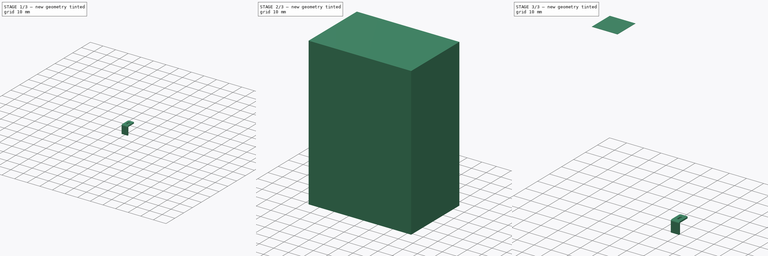
[diagram: build sequence overview — one tinted view per stage of 3, left to right]
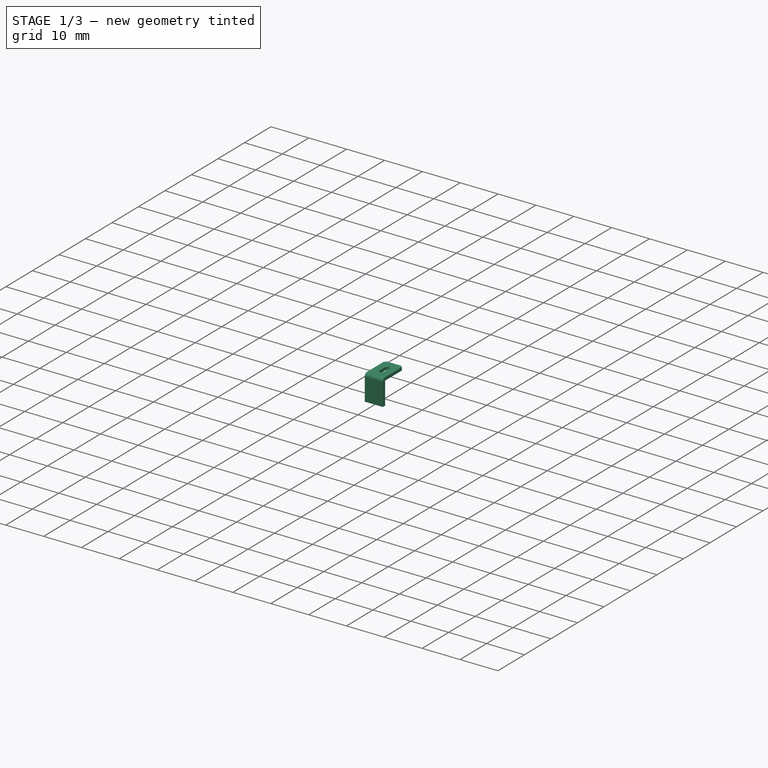
[diagram: stage 1 of 3 — iso view after this stage's code; geometry added in this stage tinted green]
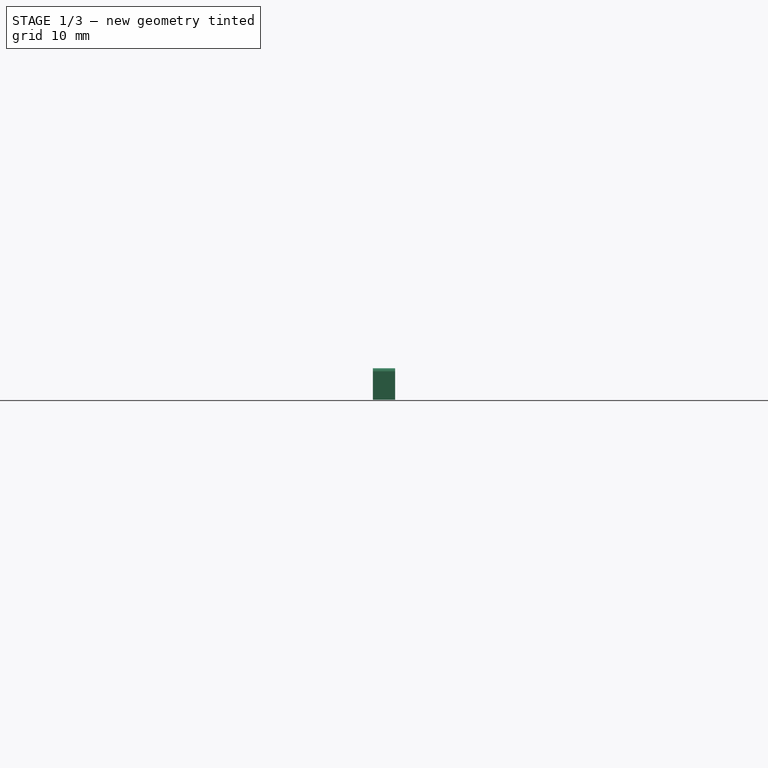
[diagram: stage 1 of 3 — front view after this stage's code; geometry added in this stage tinted green]
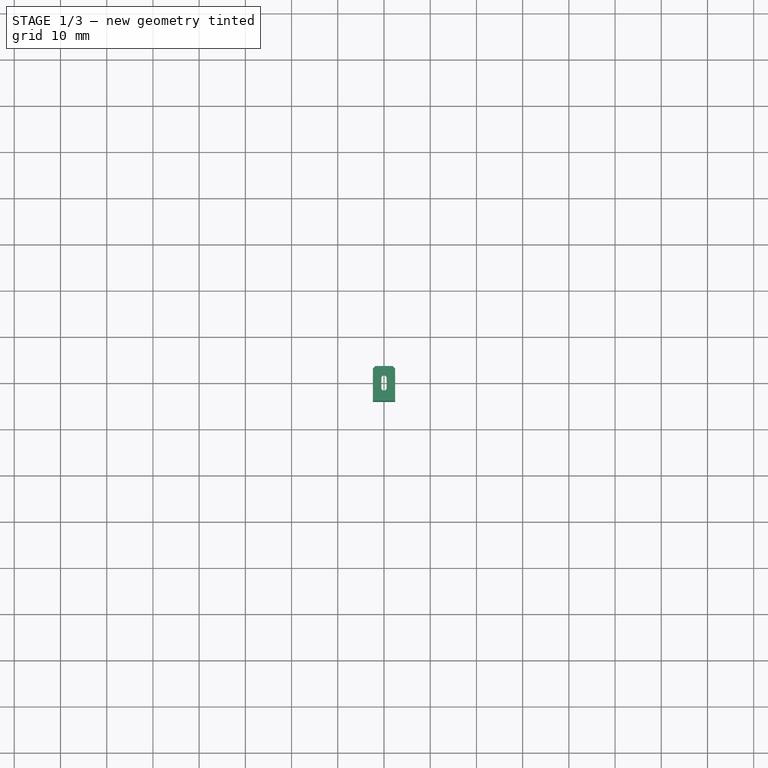
[diagram: stage 1 of 3 — top view after this stage's code; geometry added in this stage tinted green]
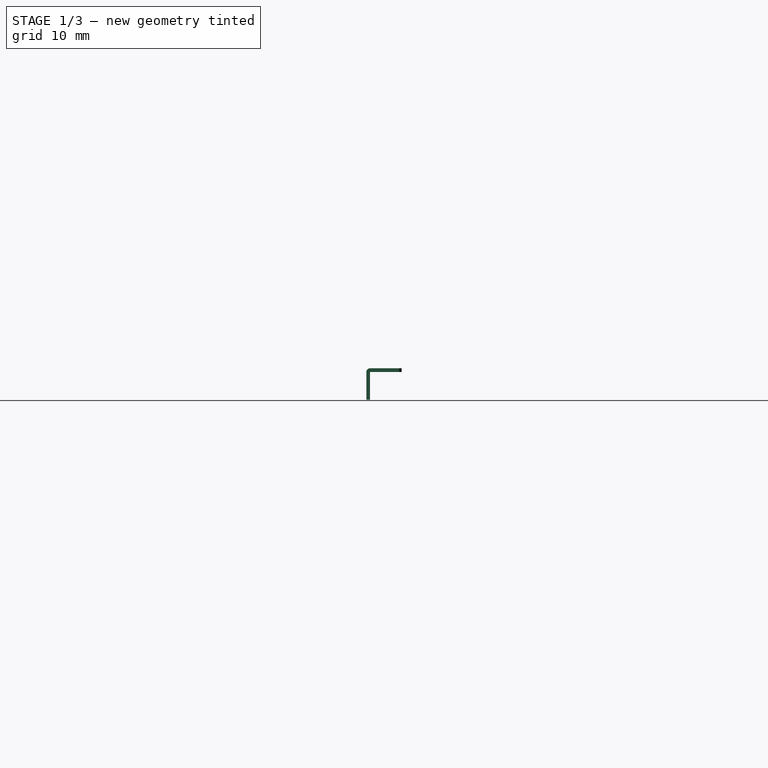
[diagram: stage 1 of 3 — right view after this stage's code; geometry added in this stage tinted green]
FCSTD DOCUMENT  (FreeCAD 0.20R29410 (Git))
Label: Battery
License: All rights reserved
LicenseURL: http://en.wikipedia.org/wiki/All_rights_reserved
objects: PartDesign::Body×6, Sketcher::SketchObject×4, PartDesign::Pad×4, App::Part×4, PartDesign::ShapeBinder×2, PartDesign::FeatureBase×2, PartDesign::Fillet×1, Part::Compound×1
note: 25 computed .brp shape members not serialized (recipe doc carries the construction recipe); baked Part::Feature solids carry a one-line shape summary decoded from their .brp

FEATURE [PartDesign::Body] Body  label="BatteryBodyEtrude"
  Group = -> [Sketch,Pad,Fillet]
  Origin = -> Origin001
  Tip = -> Fillet
FEATURE [App::Part] Part  label="BatteryBody"
  Group = -> [Body]
  Origin = -> Origin
FEATURE [Sketcher::SketchObject] Sketch001
  FullyConstrained = false
  MapMode = 5
  Support = -> [XY_Plane003]
  sketch-geometry (10):
    g0: LineSegment StartX=2.4 StartY=3.175 StartZ=0 EndX=2.4 EndY=-3.175 EndZ=0
    g1: LineSegment StartX=2.4 StartY=-3.175 StartZ=0 EndX=-2.4 EndY=-3.175 EndZ=0
    g2: LineSegment StartX=-2.4 StartY=-3.175 StartZ=0 EndX=-2.4 EndY=3.175 EndZ=0
    g3: LineSegment StartX=-2.4 StartY=3.175 StartZ=0 EndX=-1.9 EndY=3.675 EndZ=0
    g4: LineSegment StartX=-1.9 StartY=3.675 StartZ=0 EndX=1.9 EndY=3.675 EndZ=0
    g5: LineSegment StartX=1.9 StartY=3.675 StartZ=0 EndX=2.4 EndY=3.175 EndZ=0
    g6: ArcOfCircle CenterX=0 CenterY=1.07419 CenterZ=0 NormalX=0 NormalY=0 NormalZ=1 AngleXU=0 Radius=0.566592 StartAngle=0 EndAngle=3.14159
    g7: ArcOfCircle CenterX=0 CenterY=-1.07419 CenterZ=0 NormalX=0 NormalY=0 NormalZ=1 AngleXU=0 Radius=0.566592 StartAngle=3.14159 EndAngle=6.28319
    g8: LineSegment StartX=-0.566592 StartY=1.07419 StartZ=0 EndX=-0.566592 EndY=-1.07419 EndZ=0
    g9: LineSegment StartX=0.566592 StartY=-1.07419 StartZ=0 EndX=0.566592 EndY=1.07419 EndZ=0
  constraints (24):
    c: Coincident(g0,g1)
    c: Coincident(g1,g2)
    c: Horizontal(g1)
    c: Vertical(g0)
    c: Vertical(g2)
    c: Coincident(g2,g3)
    c: Coincident(g3,g4)
    c: Horizontal(g4)
    c: Coincident(g4,g5)
    c: Coincident(g0,g5)
    c: Distance(g0) = 6.35
    c: Equal(g0,g2)
    c: DistanceY(g2,g3) = 0.5
    c: Angle(g3,g2,g2) = 0.785398
    c: Angle(g0,g5,g0) = 0.785398
    c: Symmetric(g0,g1,g-1)
    c: Tangent(g6,g8) = -1.5708
    c: Tangent(g8,g7) = -1.5708
    c: Tangent(g7,g9) = -1.5708
    c: Tangent(g9,g6) = -1.5708
    c: Equal(g6,g7)
    c: PointOnObject(g6,g-2)
    c: Symmetric(g7,g6,g-1)
    c: Distance(g1) = 4.8
FEATURE [PartDesign::Pad] Pad001  label="Tab"
  Direction = (0,0,1)
  Length = 0.8
  Length2 = 10
  Profile = -> Sketch001
  ReferenceAxis = -> Sketch001 [N_Axis]
  Type = 0
FEATURE [PartDesign::Body] Body001  label="Tab001"
  Group = -> [Sketch001,Pad001]
  Origin = -> Origin003
  Tip = -> Pad001
FEATURE [PartDesign::ShapeBinder] ShapeBinder
  Support = -> [Pad001]
  TraceSupport = false
FEATURE [Sketcher::SketchObject] Sketch002
  ExternalGeometry = -> [ShapeBinder]
  FullyConstrained = true
  MapMode = 5
  Placement = pos=(2.4,0,0) rot=(0.57735,0.57735,0.57735;2.0944rad)
  Support = -> [ShapeBinder]
  sketch-geometry (5):
    g0: ArcOfCircle CenterX=-3.175 CenterY=0 CenterZ=0 NormalX=0 NormalY=0 NormalZ=1 AngleXU=0 Radius=0.8 StartAngle=1.5708 EndAngle=3.14159
    g1: LineSegment StartX=-3.975 StartY=1e-16 StartZ=0 EndX=-3.975 EndY=-6 EndZ=0
    g2: LineSegment StartX=-3.975 StartY=-6 StartZ=0 EndX=-3.175 EndY=-6 EndZ=0
    g3: LineSegment StartX=-3.175 StartY=-6 StartZ=0 EndX=-3.175 EndY=0 EndZ=0
    g4: LineSegment StartX=-3.175 StartY=0 StartZ=0 EndX=-3.175 EndY=0.8 EndZ=0
  constraints (12):
    c: Coincident(g0,g-3)
    c: Coincident(g0,g-3)
    c: PointOnObject(g0,g-1)
    c: Tangent(g0,g1) = -1.5708
    c: Coincident(g1,g2)
    c: Horizontal(g2)
    c: Coincident(g2,g3)
    c: Coincident(g3,g0)
    c: Vertical(g3)
    c: Distance(g1) = 6
    c: Coincident(g4,g0)
    c: Coincident(g4,g0)
FEATURE [PartDesign::Pad] Pad002
  Direction = (1,0,0)
  Length = 4.8
  Length2 = 10
  Profile = -> Sketch002
  ReferenceAxis = -> Sketch002 [N_Axis]
  Reversed = true
  Type = 0
FEATURE [PartDesign::Body] Body004  label="Black"
  BaseFeature = -> Pad003
  Group = -> [Clone]
  Origin = -> Origin008
  Placement = pos=(49.99,26.89,0) rot=(0,0,1;0rad)
  Tip = -> Clone
FEATURE [App::Part] Part003  label="Terminal Indicators"
  Group = -> [Body003,Body004]
  Origin = -> Origin006
FEATURE [Part::Compound] Compound  label="BatteryTabRed"
  Links = -> [Body002,Body001]
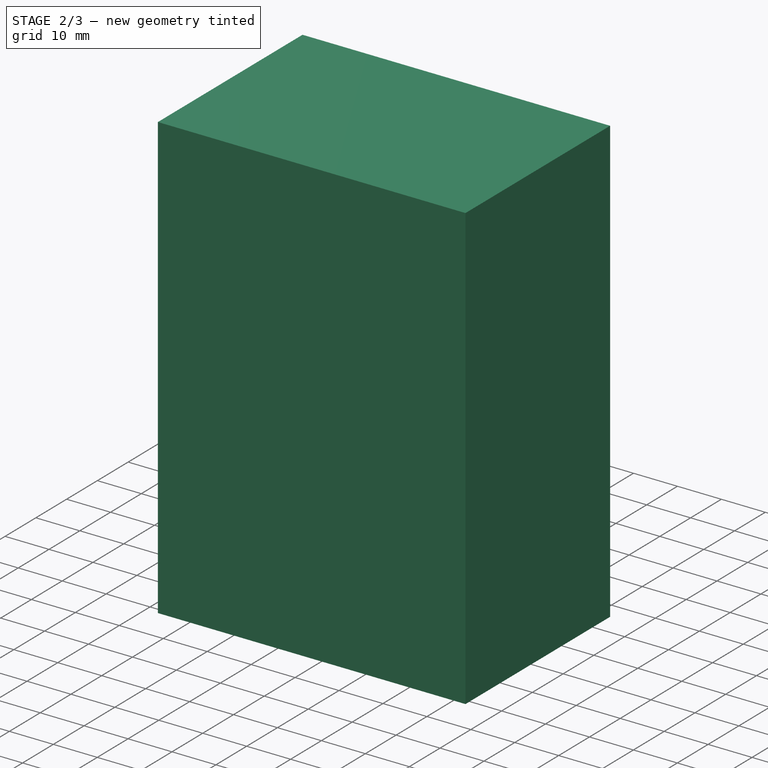
[diagram: stage 2 of 3 — iso view after this stage's code; geometry added in this stage tinted green]
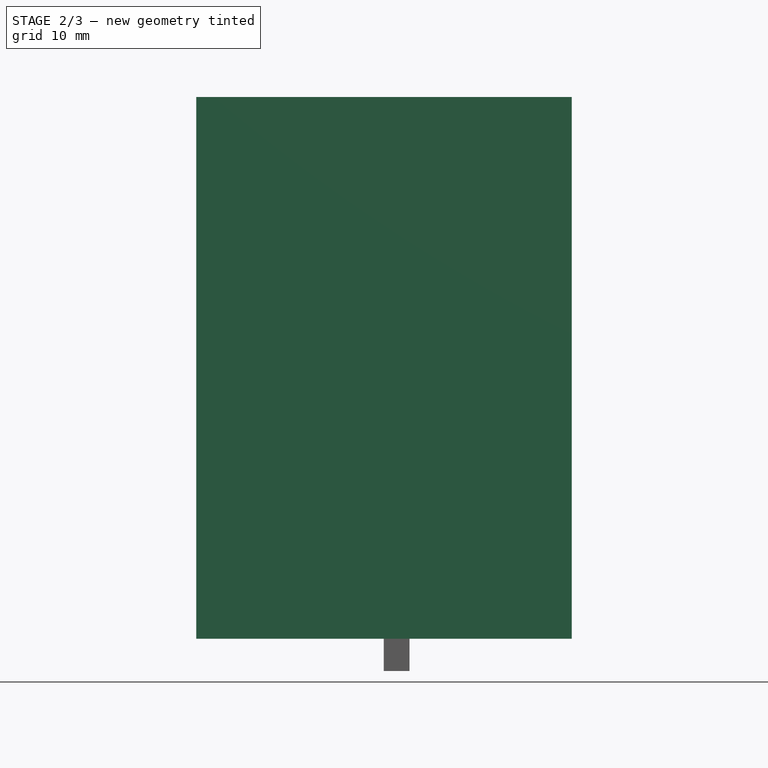
[diagram: stage 2 of 3 — front view after this stage's code; geometry added in this stage tinted green]
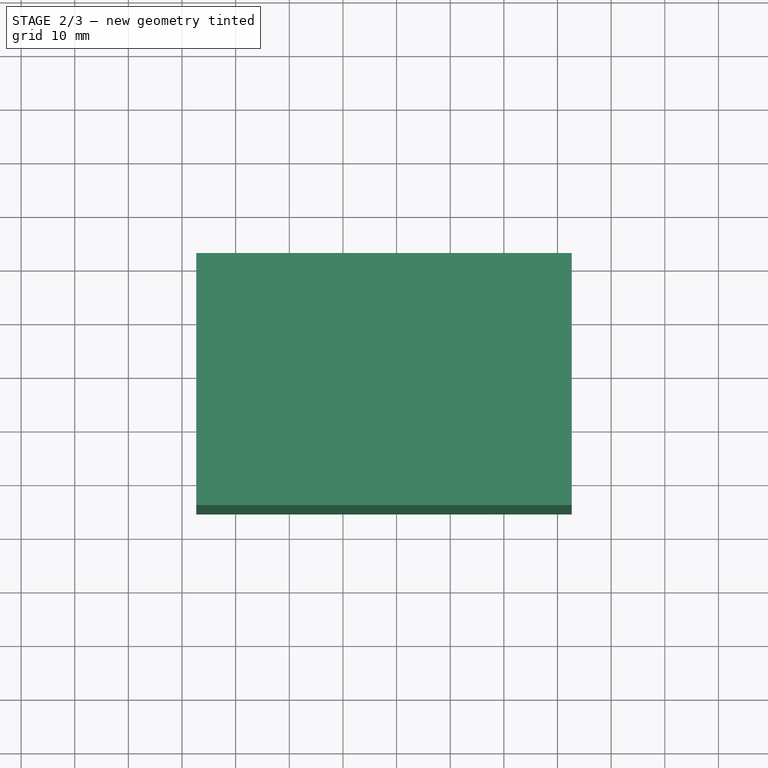
[diagram: stage 2 of 3 — top view after this stage's code; geometry added in this stage tinted green]
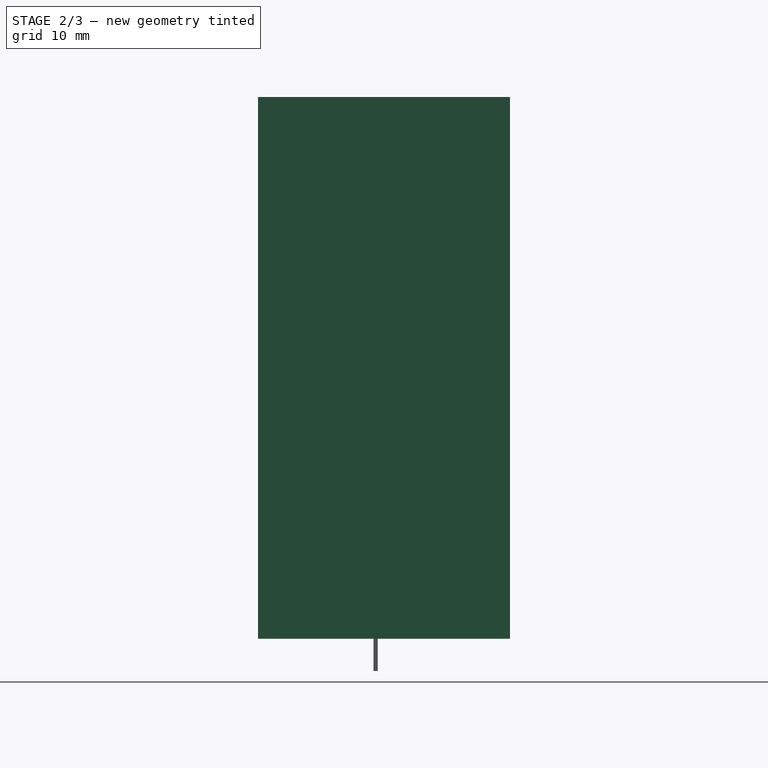
[diagram: stage 2 of 3 — right view after this stage's code; geometry added in this stage tinted green]
FEATURE [Sketcher::SketchObject] Sketch
  FullyConstrained = false
  MapMode = 5
  Support = -> [XY_Plane001]
  sketch-geometry (4):
    g0: LineSegment StartX=-37.3463 StartY=21.4889 StartZ=0 EndX=32.6537 EndY=21.4889 EndZ=0
    g1: LineSegment StartX=32.6537 StartY=21.4889 StartZ=0 EndX=32.6537 EndY=-25.5111 EndZ=0
    g2: LineSegment StartX=32.6537 StartY=-25.5111 StartZ=0 EndX=-37.3463 EndY=-25.5111 EndZ=0
    g3: LineSegment StartX=-37.3463 StartY=-25.5111 StartZ=0 EndX=-37.3463 EndY=21.4889 EndZ=0
  constraints (10):
    c: Coincident(g0,g1)
    c: Coincident(g1,g2)
    c: Coincident(g2,g3)
    c: Coincident(g3,g0)
    c: Horizontal(g0)
    c: Horizontal(g2)
    c: Vertical(g1)
    c: Vertical(g3)
    c: Distance(g0) = 70
    c: Distance(g1) = 47
FEATURE [PartDesign::Pad] Pad
  Direction = (0,0,1)
  Length = 101
  Length2 = 10
  Profile = -> Sketch
  ReferenceAxis = -> Sketch [N_Axis]
  Type = 0
FEATURE [PartDesign::FeatureBase] Clone001
  BaseFeature = -> Compound
FEATURE [PartDesign::Body] Body005  label="BatteryTabBlack"
  BaseFeature = -> Compound
  Group = -> [Clone001]
  Origin = -> Origin009
  Placement = pos=(-27.54,31.1,0) rot=(0,0,1;3.14159rad)
  Tip = -> Clone001
FEATURE [App::Part] Part001  label="BatteryTab"
  Group = -> [Body001,Body002,Compound,Body005]
  Origin = -> Origin002
  Placement = pos=(-18.31,-15.79,102.91) rot=(0,0,1;4.71239rad)
FEATURE [App::Part] Part002  label="AGM_6V"
  Group = -> [Part001,Part,Part003]
  Origin = -> Origin005
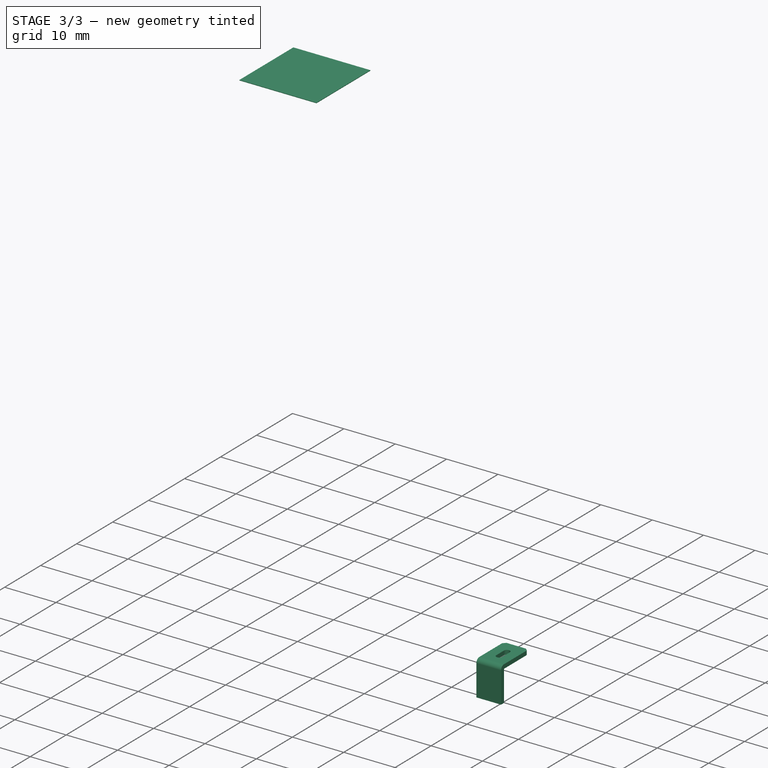
[diagram: stage 3 of 3 — iso view after this stage's code; geometry added in this stage tinted green]
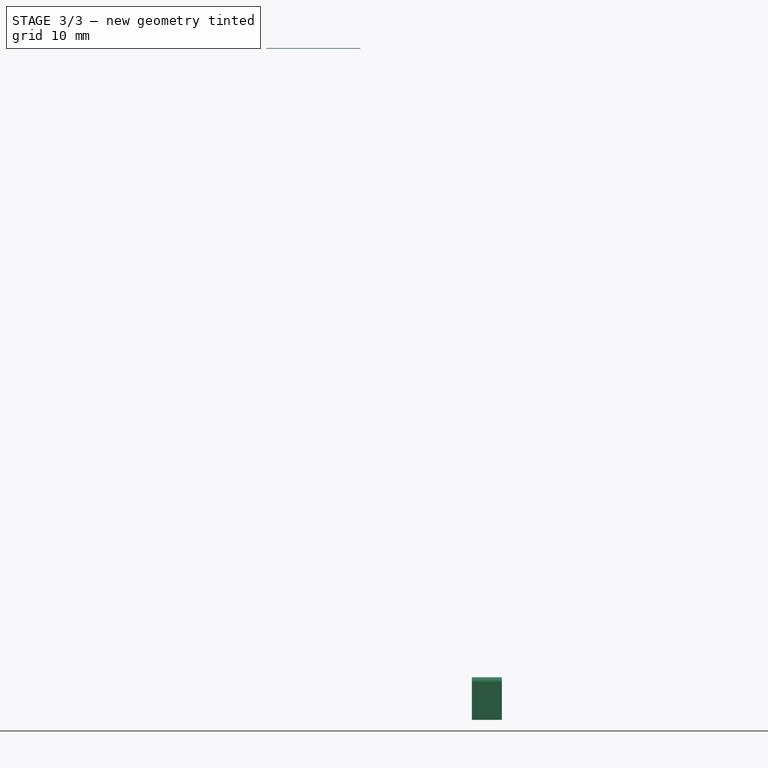
[diagram: stage 3 of 3 — front view after this stage's code; geometry added in this stage tinted green]
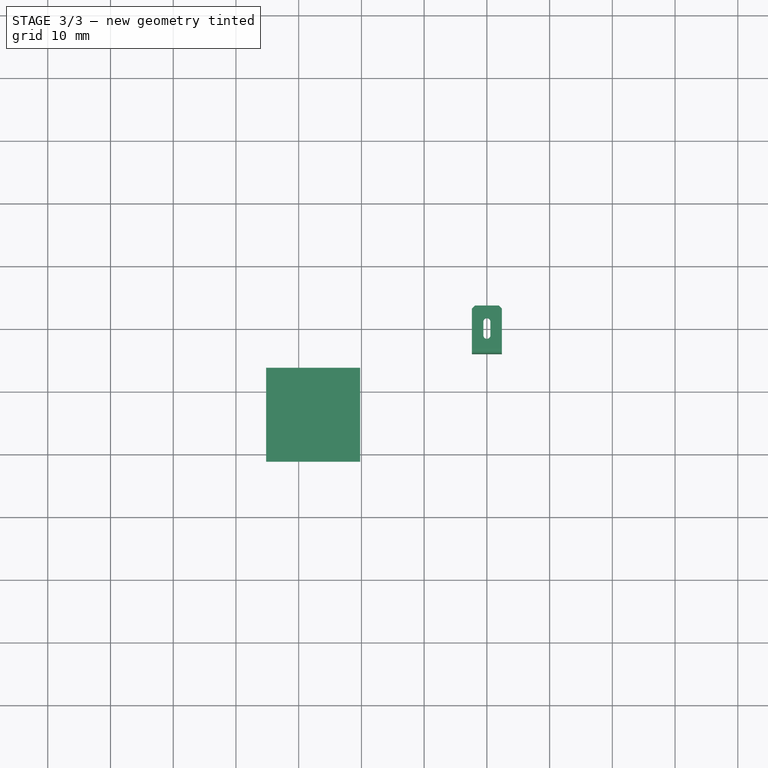
[diagram: stage 3 of 3 — top view after this stage's code; geometry added in this stage tinted green]
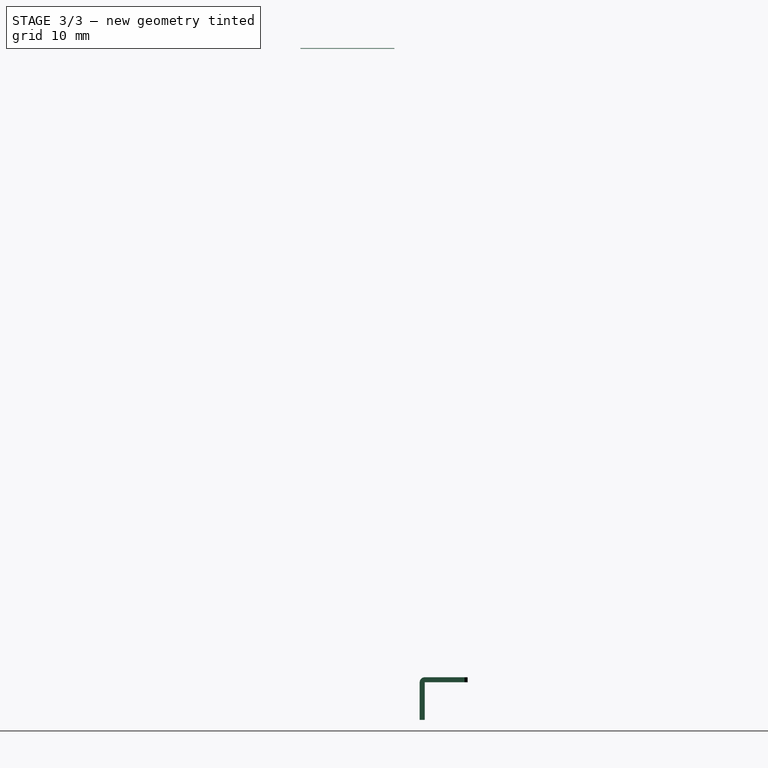
[diagram: stage 3 of 3 — right view after this stage's code; geometry added in this stage tinted green]
FEATURE [PartDesign::Fillet] Fillet
  Base = -> Pad [Edge8,Edge5,Edge2,Edge7,Edge4,Edge10,Edge12,Edge1]
  BaseFeature = -> Pad
  Radius = 1
  SupportTransform = false
  UseAllEdges = false
FEATURE [PartDesign::Body] Body002  label="TabCurve"
  Group = -> [ShapeBinder,Sketch002,Pad002]
  Origin = -> Origin004
  Tip = -> Pad002
FEATURE [PartDesign::ShapeBinder] ShapeBinder001
  Placement = pos=(0,0,101) rot=(0,0,1;0rad)
  Support = -> [Fillet]
  TraceSupport = false
FEATURE [Sketcher::SketchObject] Sketch003
  FullyConstrained = true
  MapMode = 5
  Placement = pos=(0,0,101) rot=(0,0,1;0rad)
  Support = -> [ShapeBinder001]
  sketch-geometry (4):
    g0: LineSegment StartX=-35.2 StartY=-8 StartZ=0 EndX=-20.2 EndY=-8 EndZ=0
    g1: LineSegment StartX=-20.2 StartY=-8 StartZ=0 EndX=-20.2 EndY=-23 EndZ=0
    g2: LineSegment StartX=-20.2 StartY=-23 StartZ=0 EndX=-35.2 EndY=-23 EndZ=0
    g3: LineSegment StartX=-35.2 StartY=-23 StartZ=0 EndX=-35.2 EndY=-8 EndZ=0
  constraints (12):
    c: Coincident(g0,g1)
    c: Coincident(g1,g2)
    c: Coincident(g2,g3)
    c: Coincident(g3,g0)
    c: Horizontal(g0)
    c: Horizontal(g2)
    c: Vertical(g1)
    c: Vertical(g3)
    c: Distance(g0) = 15
    c: Distance(g1) = 15
    c: DistanceX(g0,g-1) = 20.2
    c: DistanceY(g0,g-1) = 8
FEATURE [PartDesign::Pad] Pad003
  Direction = (0,0,1)
  Length = 0.1
  Length2 = 10
  Placement = pos=(0,0,101) rot=(0,0,1;0rad)
  Profile = -> Sketch003
  ReferenceAxis = -> Sketch003 [N_Axis]
  Type = 0
FEATURE [PartDesign::Body] Body003  label="Red"
  Group = -> [ShapeBinder001,Sketch003,Pad003]
  Origin = -> Origin007
  Tip = -> Pad003
FEATURE [PartDesign::FeatureBase] Clone
  BaseFeature = -> Pad003
  Placement = pos=(0,0,101) rot=(0,0,1;0rad)
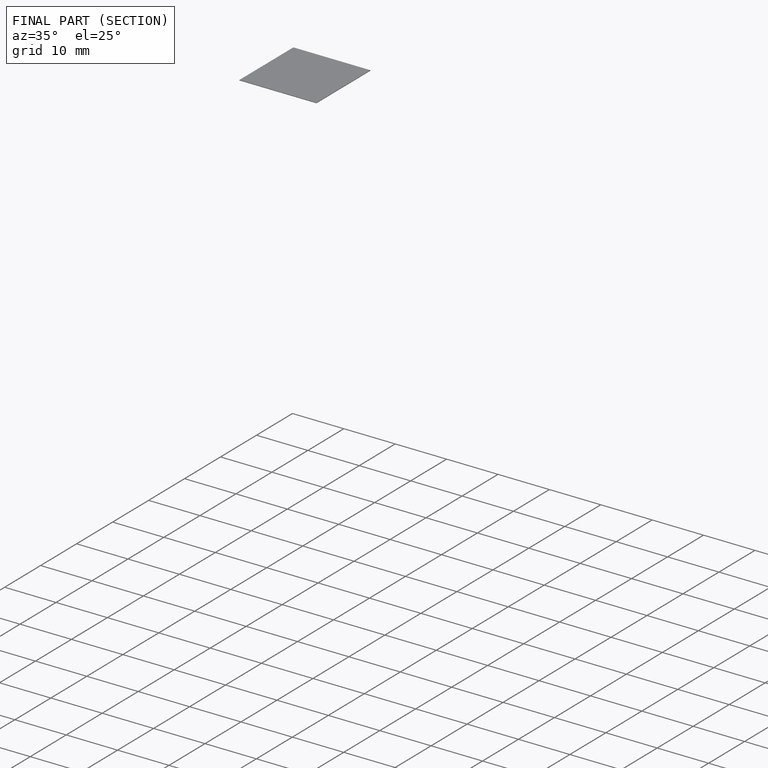
[diagram: finished part — half-section view (interior)]
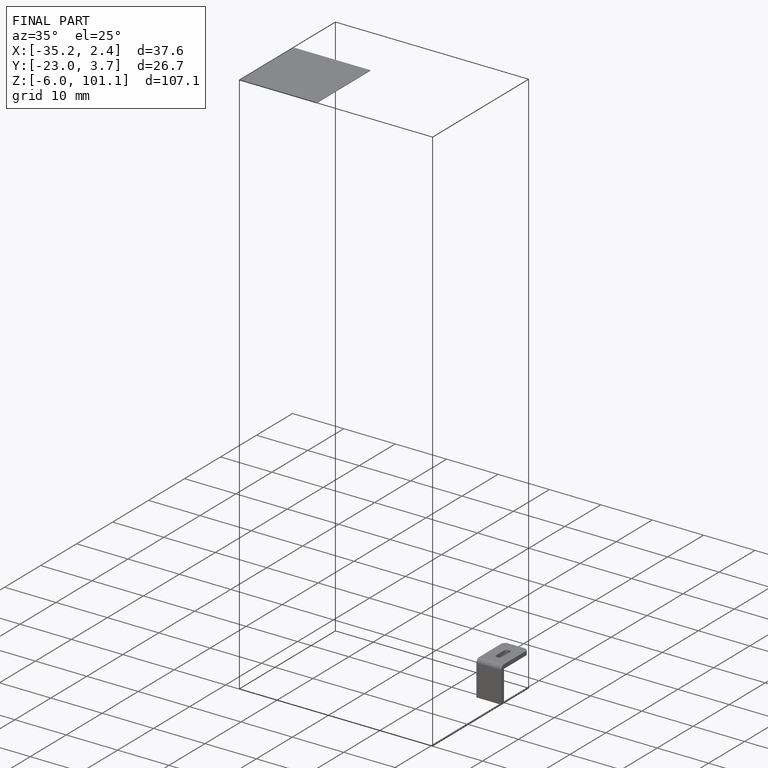
[diagram: finished part — iso view with bounding-box wireframe]
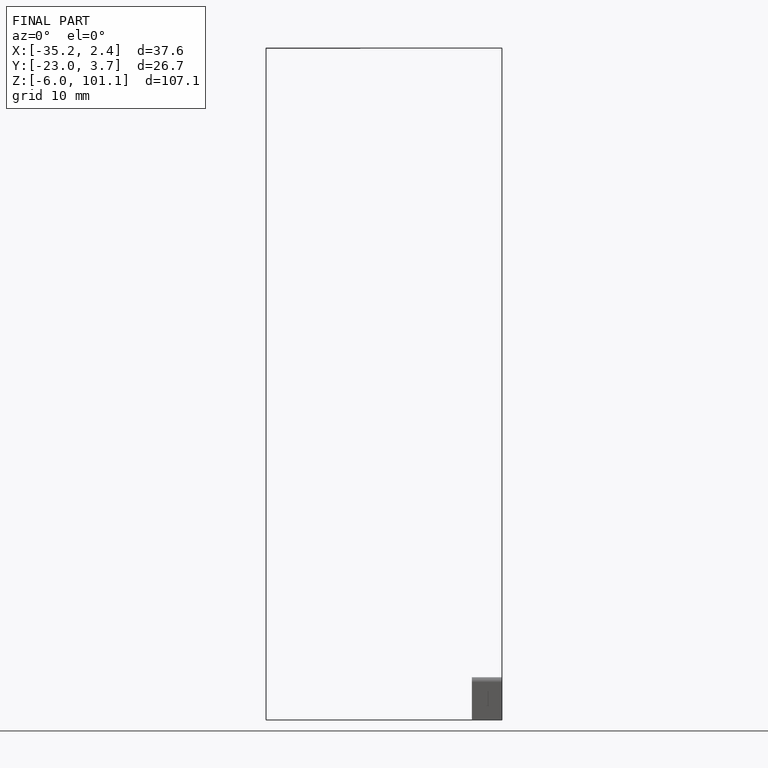
[diagram: finished part — front view with bounding-box wireframe]
